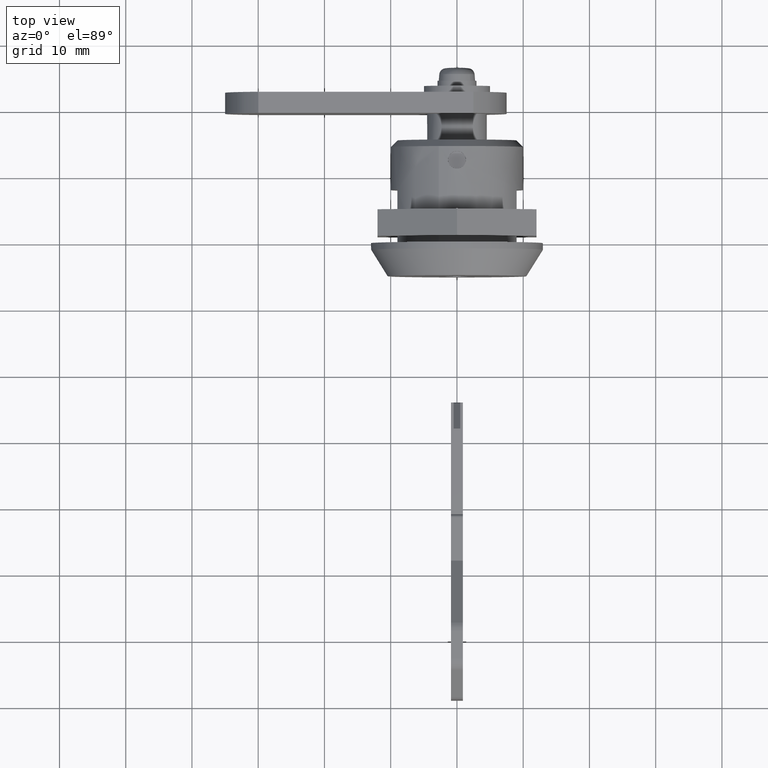
[diagram: clean part render]
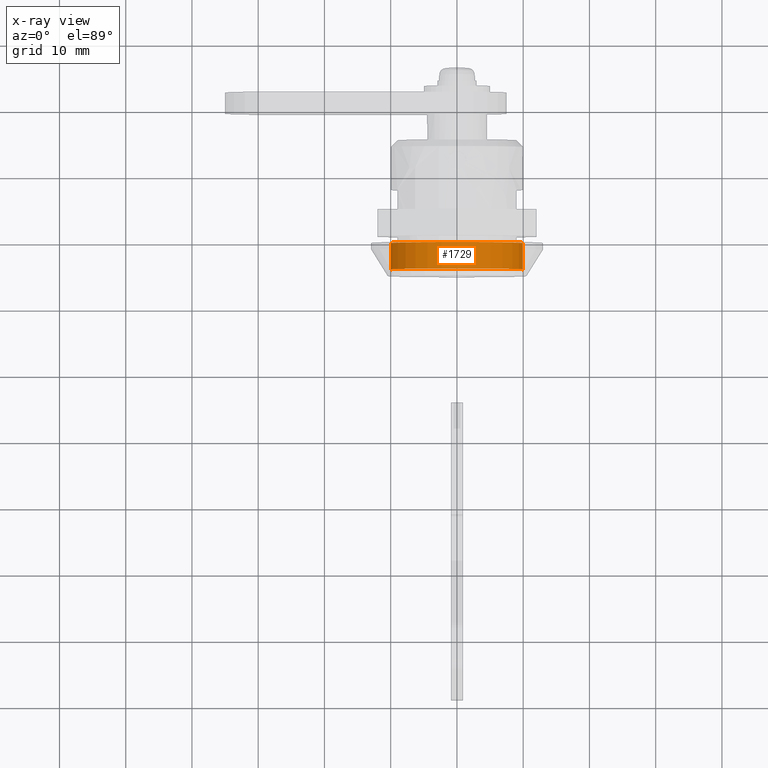
[diagram: x-ray — body ghosted, one internal face saturated and labeled with its STEP entity id]
A machine part, top view, then the same camera in x-ray: the body is ghosted and one INTERNAL B-rep face — a face not visible from any outside direction — is saturated and labeled: STEP entity #1729.
In plain terms, the highlighted face is a freeform B-spline surface patch.
Its self-contained STEP definition (entity closure, byte-faithful):
#1627=CARTESIAN_POINT('',(0.099999999999997,-9.930095263636664,-1.180342346567585));
#1628=CARTESIAN_POINT('',(0.099999999999997,-9.963876154486057,-0.896147286379777));
#1629=CARTESIAN_POINT('',(0.099999999999997,-9.981347984218667,-0.610485395348570));
#1630=CARTESIAN_POINT('',(0.099999999999997,-10.591833379567237,9.370862588870097));
#1631=CARTESIAN_POINT('',(0.099999999999997,-0.610485395348570,9.981347984218667));
#1632=CARTESIAN_POINT('',(0.099999999999997,9.370862588870097,10.591833379567237));
#1633=CARTESIAN_POINT('',(0.099999999999997,9.981347984218667,0.610485395348570));
#1634=CARTESIAN_POINT('',(-4.102499999999894,-9.930095263636664,-1.180342346567585));
#1635=CARTESIAN_POINT('',(-4.102499999999894,-9.963876154486057,-0.896147286379777));
#1636=CARTESIAN_POINT('',(-4.102499999999894,-9.981347984218667,-0.610485395348570));
#1637=CARTESIAN_POINT('',(-4.102499999999894,-10.591833379567237,9.370862588870097));
#1638=CARTESIAN_POINT('',(-4.102499999999894,-0.610485395348570,9.981347984218667));
#1639=CARTESIAN_POINT('',(-4.102499999999894,9.370862588870097,10.591833379567237));
#1640=CARTESIAN_POINT('',(-4.102499999999894,9.981347984218667,0.610485395348570));
#1648=(BOUNDED_SURFACE()B_SPLINE_SURFACE(2,1,((#1627,#1634),(#1628,#1635),(#1629,#1636),(#1630,#1637),(#1631,#1638),(#1632,#1639),(#1633,#1640)),.UNSPECIFIED.,.F.,.F.,.U.)B_SPLINE_SURFACE_WITH_KNOTS((3,2,2,3),(2,2),(0.0,0.662741699796953,17.231284194720750,33.799826689644547),(0.0,4.202499999999892),.UNSPECIFIED.)GEOMETRIC_REPRESENTATION_ITEM()RATIONAL_B_SPLINE_SURFACE(((0.977505800795127,0.977505800795127),(0.988284271247462,0.988284271247462),(1.0,1.0),(0.707106781186548,0.707106781186548),(1.0,1.0),(0.707106781186548,0.707106781186548),(1.0,1.0)))REPRESENTATION_ITEM('')SURFACE());
#1649=CARTESIAN_POINT('',(-3.999999999999895,-9.930095263626674,-1.180342346651616));
#1650=VERTEX_POINT('',#1649);
#1651=CARTESIAN_POINT('',(-3.999999999999895,0.0,10.0));
#1652=VERTEX_POINT('',#1651);
#1653=CARTESIAN_POINT('',(-3.999999999999895,-9.930095263626674,-1.180342346651617));
#1654=CARTESIAN_POINT('',(-3.999999999999895,-10.0,-0.592241196604022));
#1655=CARTESIAN_POINT('',(-3.999999999999895,-10.0,0.0));
#1656=CARTESIAN_POINT('',(-3.999999999999895,-10.000000000000002,10.000000000000002));
#1657=CARTESIAN_POINT('',(-3.999999999999895,0.0,10.0));
#1665=(BOUNDED_CURVE()B_SPLINE_CURVE(2,(#1653,#1654,#1655,#1656,#1657),.UNSPECIFIED.,.F.,.U.)B_SPLINE_CURVE_WITH_KNOTS((3,2,3),(0.229562473512784,0.250000000000000,0.500000000000000),.UNSPECIFIED.)CURVE()GEOMETRIC_REPRESENTATION_ITEM()RATIONAL_B_SPLINE_CURVE((0.956026754182279,0.976055948330296,1.0,0.707106781186548,1.0))REPRESENTATION_ITEM(''));
#1666=EDGE_CURVE('',#1650,#1652,#1665,.T.);
#1667=ORIENTED_EDGE('',*,*,#1666,.T.);
#1668=CARTESIAN_POINT('',(-3.999999999999895,9.981347984212428,0.610485395450610));
#1669=VERTEX_POINT('',#1668);
#1670=CARTESIAN_POINT('',(-3.999999999999895,0.0,10.0));
#1671=CARTESIAN_POINT('',(-3.999999999999894,9.407060668864288,10.0));
#1672=CARTESIAN_POINT('',(-3.999999999999895,9.981347984212428,0.610485395450610));
#1680=(BOUNDED_CURVE()B_SPLINE_CURVE(2,(#1670,#1671,#1672),.UNSPECIFIED.,.F.,.U.)B_SPLINE_CURVE_WITH_KNOTS((3,3),(0.500000000000000,0.739332962238441),.UNSPECIFIED.)CURVE()GEOMETRIC_REPRESENTATION_ITEM()RATIONAL_B_SPLINE_CURVE((1.0,0.719603993287298,0.976072041665642))REPRESENTATION_ITEM(''));
#1681=EDGE_CURVE('',#1652,#1669,#1680,.T.);
#1682=ORIENTED_EDGE('',*,*,#1681,.T.);
#1683=CARTESIAN_POINT('',(1.318390E-016,9.981347984212428,0.610485395450610));
#1684=VERTEX_POINT('',#1683);
#1685=CARTESIAN_POINT('',(1.318390E-016,9.981347984212428,0.610485395450610));
#1686=CARTESIAN_POINT('',(-3.999999999999895,9.981347984212428,0.610485395450610));
#1687=QUASI_UNIFORM_CURVE('',1,(#1685,#1686),.UNSPECIFIED.,.F.,.U.);
#1688=EDGE_CURVE('',#1684,#1669,#1687,.T.);
#1689=ORIENTED_EDGE('',*,*,#1688,.F.);
#1690=CARTESIAN_POINT('',(0.0,0.0,10.0));
#1691=VERTEX_POINT('',#1690);
#1692=CARTESIAN_POINT('',(0.0,0.0,10.0));
#1693=CARTESIAN_POINT('',(0.0,9.407060668864288,10.0));
#1694=CARTESIAN_POINT('',(1.318390E-016,9.981347984212428,0.610485395450610));
#1702=(BOUNDED_CURVE()B_SPLINE_CURVE(2,(#1692,#1693,#1694),.UNSPECIFIED.,.F.,.U.)B_SPLINE_CURVE_WITH_KNOTS((3,3),(0.500000000000000,0.739332962238441),.UNSPECIFIED.)CURVE()GEOMETRIC_REPRESENTATION_ITEM()RATIONAL_B_SPLINE_CURVE((1.0,0.719603993287298,0.976072041665642))REPRESENTATION_ITEM(''));
#1703=EDGE_CURVE('',#1691,#1684,#1702,.T.);
#1704=ORIENTED_EDGE('',*,*,#1703,.F.);
#1705=CARTESIAN_POINT('',(1.419714E-016,-9.930095263626676,-1.180342346651615));
#1706=VERTEX_POINT('',#1705);
#1707=CARTESIAN_POINT('',(1.419714E-016,-9.930095263626676,-1.180342346651616));
#1708=CARTESIAN_POINT('',(0.0,-9.999999999999998,-0.592241196604021));
#1709=CARTESIAN_POINT('',(0.0,-10.0,0.0));
#1710=CARTESIAN_POINT('',(0.0,-10.000000000000002,10.000000000000002));
#1711=CARTESIAN_POINT('',(0.0,0.0,10.0));
#1719=(BOUNDED_CURVE()B_SPLINE_CURVE(2,(#1707,#1708,#1709,#1710,#1711),.UNSPECIFIED.,.F.,.U.)B_SPLINE_CURVE_WITH_KNOTS((3,2,3),(0.229562473512784,0.250000000000000,0.500000000000000),.UNSPECIFIED.)CURVE()GEOMETRIC_REPRESENTATION_ITEM()RATIONAL_B_SPLINE_CURVE((0.956026754182279,0.976055948330296,1.0,0.707106781186548,1.0))REPRESENTATION_ITEM(''));
#1720=EDGE_CURVE('',#1706,#1691,#1719,.T.);
#1721=ORIENTED_EDGE('',*,*,#1720,.F.);
#1722=CARTESIAN_POINT('',(1.419714E-016,-9.930095263626676,-1.180342346651615));
#1723=CARTESIAN_POINT('',(-3.999999999999895,-9.930095263626674,-1.180342346651616));
#1724=QUASI_UNIFORM_CURVE('',1,(#1722,#1723),.UNSPECIFIED.,.F.,.U.);
#1725=EDGE_CURVE('',#1706,#1650,#1724,.T.);
#1726=ORIENTED_EDGE('',*,*,#1725,.T.);
#1727=EDGE_LOOP('',(#1667,#1682,#1689,#1704,#1721,#1726));
#1728=FACE_OUTER_BOUND('',#1727,.T.);
#1729=ADVANCED_FACE('',(#1728),#1648,.F.);